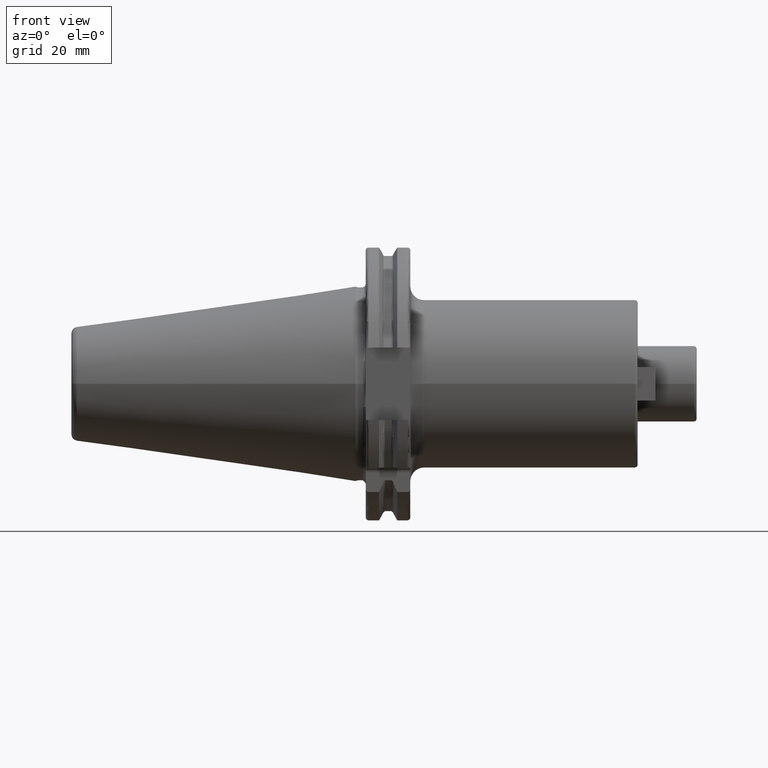
[diagram: clean part render]
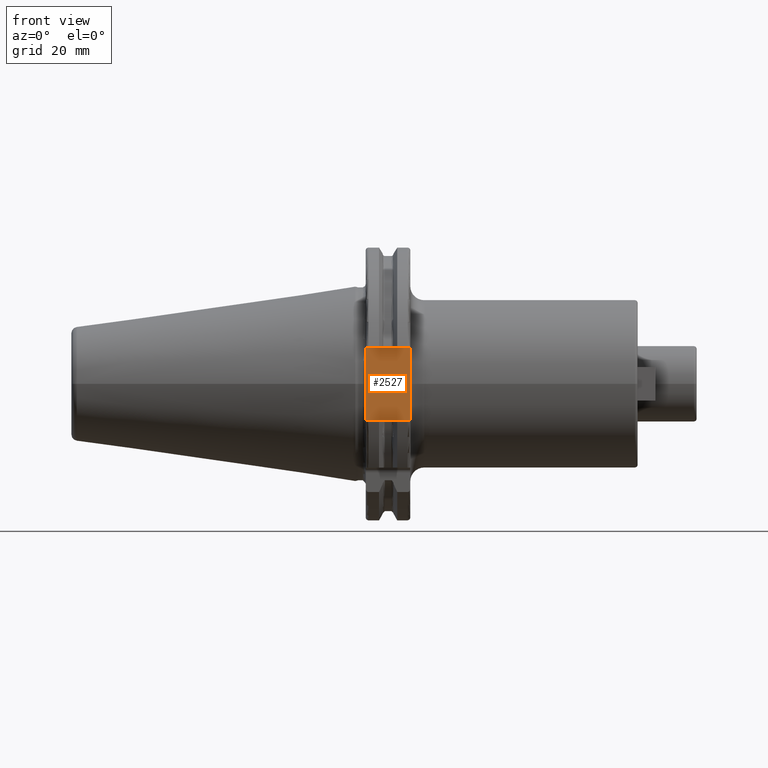
[diagram: same view with one face highlighted and labeled with its STEP entity id]
A machine part, front view. The second image highlights one B-rep face of the part: STEP entity #2527.
In plain terms, the highlighted planar face has unit normal (0, 1, 0).
Its self-contained STEP definition (entity closure, byte-faithful):
#138=DIRECTION('',(0.E0,0.E0,1.E0));
#139=VECTOR('',#138,2.58E1);
#140=CARTESIAN_POINT('',(1.905E1,-3.75E1,-1.29E1));
#141=LINE('',#140,#139);
#220=DIRECTION('',(0.E0,0.E0,1.E0));
#221=VECTOR('',#220,2.58E1);
#222=CARTESIAN_POINT('',(3.2E0,-3.75E1,-1.29E1));
#223=LINE('',#222,#221);
#347=DIRECTION('',(-1.E0,0.E0,0.E0));
#348=VECTOR('',#347,1.585E1);
#349=CARTESIAN_POINT('',(1.905E1,-3.75E1,1.29E1));
#350=LINE('',#349,#348);
#876=DIRECTION('',(-1.E0,0.E0,0.E0));
#877=VECTOR('',#876,1.585E1);
#878=CARTESIAN_POINT('',(1.905E1,-3.75E1,-1.29E1));
#879=LINE('',#878,#877);
#1471=CARTESIAN_POINT('',(1.905E1,-3.75E1,-1.29E1));
#1473=VERTEX_POINT('',#1471);
#1474=CARTESIAN_POINT('',(1.905E1,-3.75E1,1.29E1));
#1475=VERTEX_POINT('',#1474);
#1499=CARTESIAN_POINT('',(3.2E0,-3.75E1,-1.29E1));
#1501=VERTEX_POINT('',#1499);
#1502=CARTESIAN_POINT('',(3.2E0,-3.75E1,1.29E1));
#1503=VERTEX_POINT('',#1502);
#2516=CARTESIAN_POINT('',(1.905E1,-3.75E1,-1.29E1));
#2517=DIRECTION('',(0.E0,1.E0,0.E0));
#2518=DIRECTION('',(0.E0,0.E0,1.E0));
#2519=AXIS2_PLACEMENT_3D('',#2516,#2517,#2518);
#2520=PLANE('',#2519);
#2521=ORIENTED_EDGE('',*,*,#1819,.F.);
#2522=ORIENTED_EDGE('',*,*,#2374,.T.);
#2523=ORIENTED_EDGE('',*,*,#1914,.T.);
#2524=ORIENTED_EDGE('',*,*,#2128,.F.);
#2525=EDGE_LOOP('',(#2521,#2522,#2523,#2524));
#2526=FACE_OUTER_BOUND('',#2525,.F.);
#2527=ADVANCED_FACE('',(#2526),#2520,.F.);
#1819=EDGE_CURVE('',#1473,#1475,#141,.T.);
#1914=EDGE_CURVE('',#1501,#1503,#223,.T.);
#2128=EDGE_CURVE('',#1475,#1503,#350,.T.);
#2374=EDGE_CURVE('',#1473,#1501,#879,.T.);